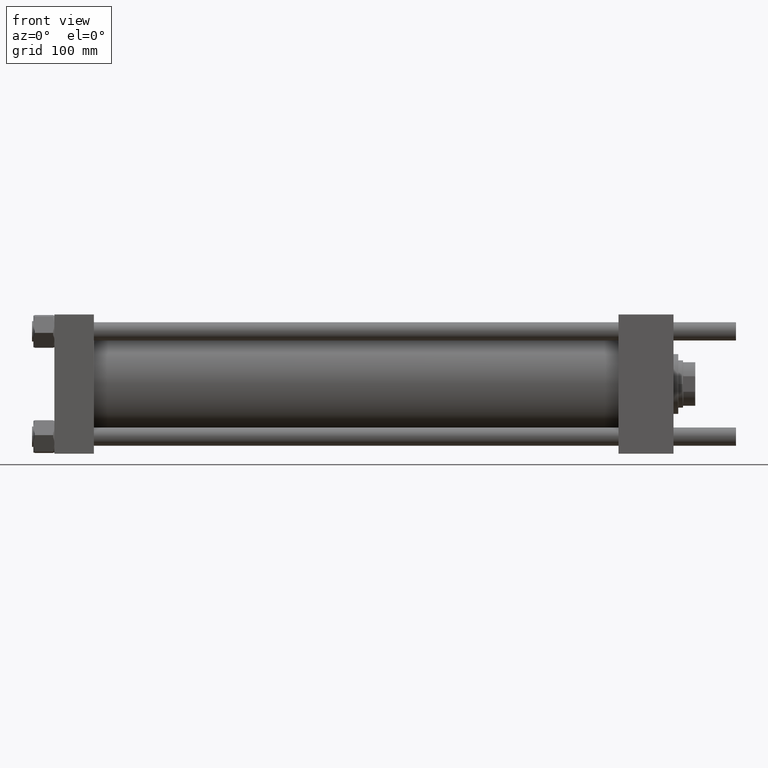
[diagram: clean part render]
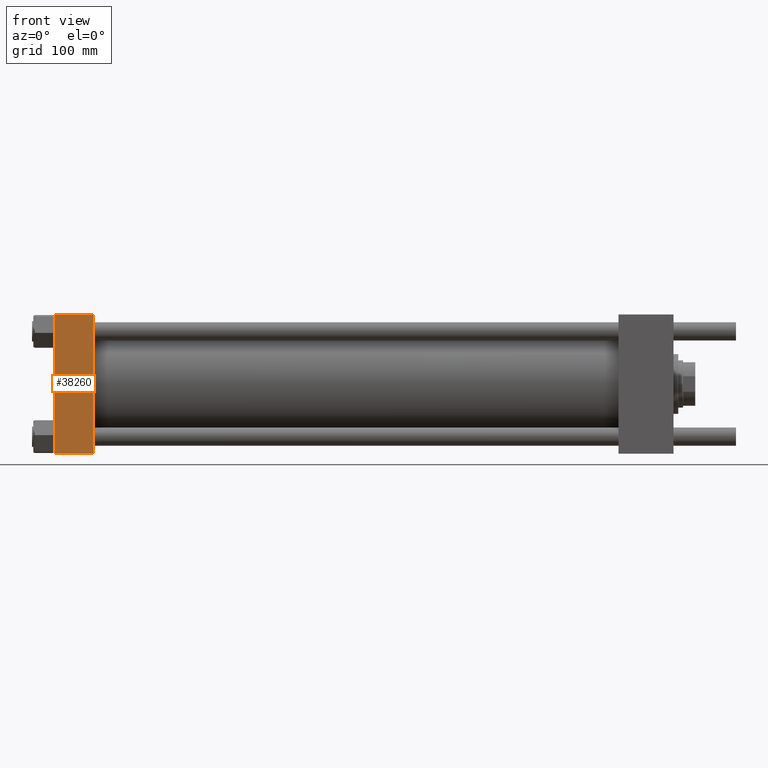
[diagram: same view with one face highlighted and labeled with its STEP entity id]
A machine part, front view. The second image highlights one B-rep face of the part: STEP entity #38260.
In plain terms, the highlighted planar face has unit normal (0, 1, -0).
Its self-contained STEP definition (entity closure, byte-faithful):
#2078 = ORIENTED_EDGE ( 'NONE', *, *, #42752, .T. ) ;
#2749 = ORIENTED_EDGE ( 'NONE', *, *, #21112, .T. ) ;
#2823 = AXIS2_PLACEMENT_3D ( 'NONE', #54640, #46241, #10630 ) ;
#3025 = VECTOR ( 'NONE', #19316, 1000.000000000000000 ) ;
#3494 = VERTEX_POINT ( 'NONE', #14851 ) ;
#4845 = VECTOR ( 'NONE', #25431, 1000.000000000000000 ) ;
#6937 = ORIENTED_EDGE ( 'NONE', *, *, #14134, .T. ) ;
#7747 = LINE ( 'NONE', #21351, #4845 ) ;
#10630 = DIRECTION ( 'NONE',  ( 0.000000000000000000, 1.353930517835556973E-16, 1.000000000000000000 ) ) ;
#12560 = VERTEX_POINT ( 'NONE', #27762 ) ;
#14134 = EDGE_CURVE ( 'NONE', #12560, #44792, #32646, .T. ) ;
#14851 = CARTESIAN_POINT ( 'NONE',  ( 58.00000000000000000, -102.5000000000000000, -101.9999999999998863 ) ) ;
#19316 = DIRECTION ( 'NONE',  ( -1.000000000000000000, 0.000000000000000000, 0.000000000000000000 ) ) ;
#19902 = FACE_OUTER_BOUND ( 'NONE', #22848, .T. ) ;
#21112 = EDGE_CURVE ( 'NONE', #44792, #54692, #30734, .T. ) ;
#21351 = CARTESIAN_POINT ( 'NONE',  ( 58.00000000000000000, -102.5000000000000000, -101.9999999999999432 ) ) ;
#22193 = CARTESIAN_POINT ( 'NONE',  ( 0.000000000000000000, -102.5000000000000000, -101.9999999999998863 ) ) ;
#22848 = EDGE_LOOP ( 'NONE', ( #2749, #2078, #29550, #6937 ) ) ;
#25431 = DIRECTION ( 'NONE',  ( 1.000000000000000000, 0.000000000000000000, 0.000000000000000000 ) ) ;
#26375 = VECTOR ( 'NONE', #27370, 1000.000000000000000 ) ;
#27370 = DIRECTION ( 'NONE',  ( 0.000000000000000000, -1.353930517835556973E-16, -1.000000000000000000 ) ) ;
#27762 = CARTESIAN_POINT ( 'NONE',  ( 58.00000000000000000, -102.4999999999999716, 102.0000000000000000 ) ) ;
#29550 = ORIENTED_EDGE ( 'NONE', *, *, #56613, .F. ) ;
#30734 = LINE ( 'NONE', #33936, #31012 ) ;
#31012 = VECTOR ( 'NONE', #47237, 1000.000000000000000 ) ;
#32646 = LINE ( 'NONE', #36406, #3025 ) ;
#33936 = CARTESIAN_POINT ( 'NONE',  ( 0.000000000000000000, -102.4999999999999716, 102.5000000000000000 ) ) ;
#36406 = CARTESIAN_POINT ( 'NONE',  ( 58.00000000000000000, -102.4999999999999716, 102.0000000000000000 ) ) ;
#36987 = PLANE ( 'NONE',  #2823 ) ;
#38260 = ADVANCED_FACE ( 'NONE', ( #19902 ), #36987, .F. ) ;
#39527 = CARTESIAN_POINT ( 'NONE',  ( 58.00000000000000000, -102.4999999999999716, 102.5000000000000000 ) ) ;
#41500 = CARTESIAN_POINT ( 'NONE',  ( 0.000000000000000000, -102.4999999999999716, 102.0000000000000000 ) ) ;
#42752 = EDGE_CURVE ( 'NONE', #54692, #3494, #7747, .T. ) ;
#44792 = VERTEX_POINT ( 'NONE', #41500 ) ;
#46241 = DIRECTION ( 'NONE',  ( 0.000000000000000000, 1.000000000000000000, -1.353930517835556973E-16 ) ) ;
#47237 = DIRECTION ( 'NONE',  ( 0.000000000000000000, -1.353930517835556973E-16, -1.000000000000000000 ) ) ;
#54640 = CARTESIAN_POINT ( 'NONE',  ( 58.00000000000000000, -102.4999999999999716, 102.5000000000000000 ) ) ;
#54692 = VERTEX_POINT ( 'NONE', #22193 ) ;
#56613 = EDGE_CURVE ( 'NONE', #12560, #3494, #57176, .T. ) ;
#57176 = LINE ( 'NONE', #39527, #26375 ) ;